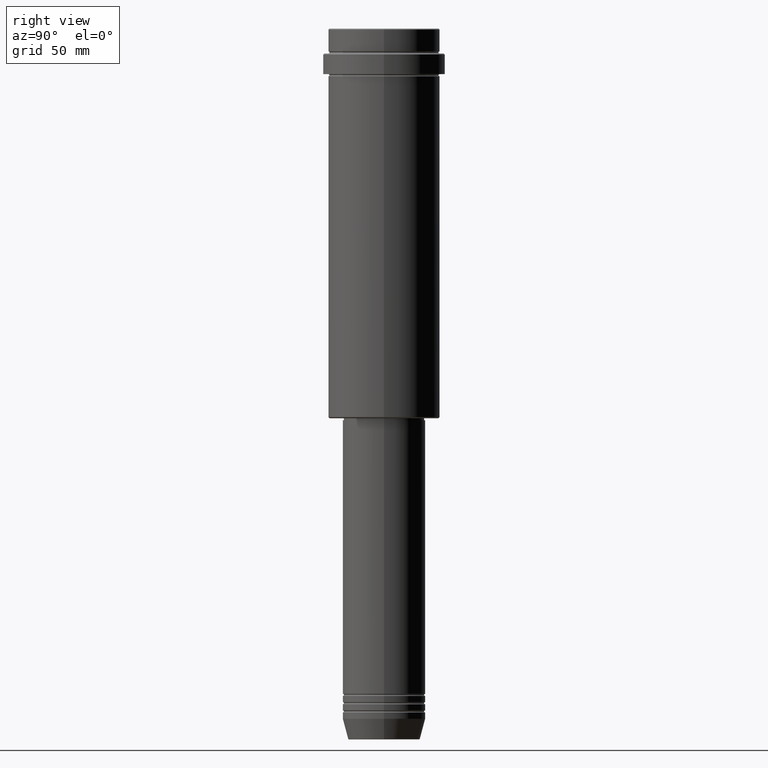
[diagram: clean part render]
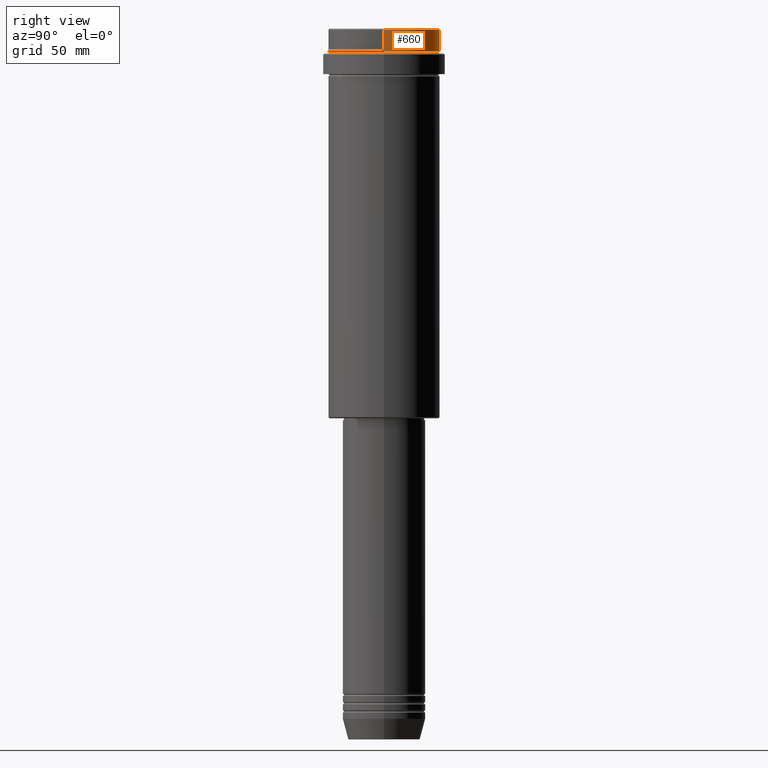
[diagram: same view with one face highlighted and labeled with its STEP entity id]
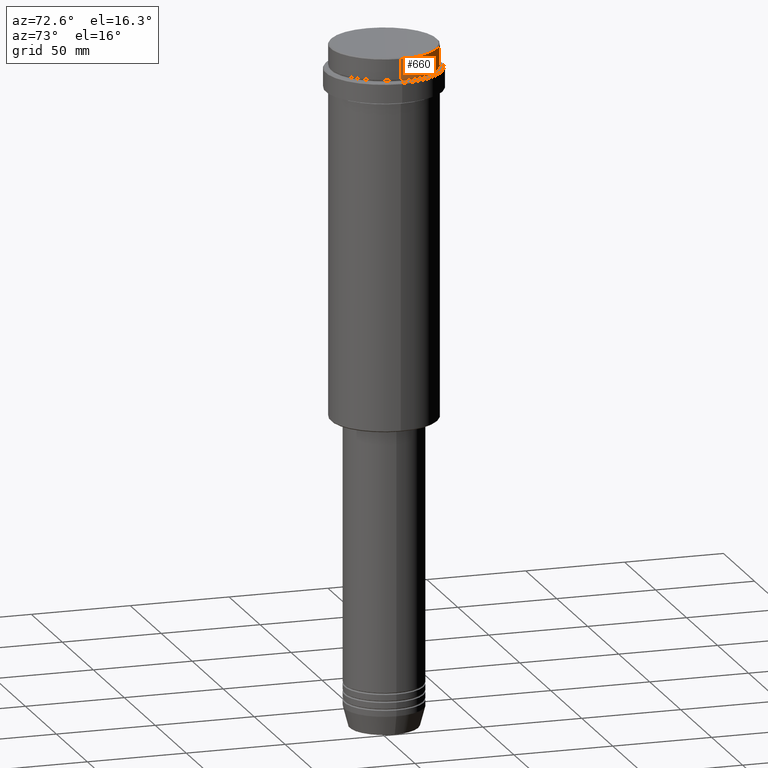
[diagram: same view with one face highlighted and labeled with its STEP entity id]
A machine part, right view. The second image highlights one B-rep face of the part: STEP entity #660.
A second angle (auxiliary view) of the same face is appended — the face is thin or edge-on in the first view.
In plain terms, the highlighted cylindrical surface (partial cylindrical patch) has radius 27 mm, axis along (-0, -0, 1).
Its self-contained STEP definition (entity closure, byte-faithful):
#37 = CIRCLE ( 'NONE', #472, 27.00000000000000355 ) ;
#51 = VECTOR ( 'NONE', #1238, 1000.000000000000000 ) ;
#68 = EDGE_CURVE ( 'NONE', #1040, #731, #37, .T. ) ;
#71 = LINE ( 'NONE', #401, #51 ) ;
#99 = CIRCLE ( 'NONE', #120, 27.00000000000000355 ) ;
#120 = AXIS2_PLACEMENT_3D ( 'NONE', #612, #718, #711 ) ;
#140 = CARTESIAN_POINT ( 'NONE',  ( -27.00000000000000355, 3.306546357697854128E-15, -0.4999999999999241163 ) ) ;
#164 = ORIENTED_EDGE ( 'NONE', *, *, #68, .T. ) ;
#190 = DIRECTION ( 'NONE',  ( -0.000000000000000000, -0.000000000000000000, 1.000000000000000000 ) ) ;
#214 = VERTEX_POINT ( 'NONE', #1381 ) ;
#293 = ORIENTED_EDGE ( 'NONE', *, *, #1083, .T. ) ;
#387 = AXIS2_PLACEMENT_3D ( 'NONE', #396, #190, #1156 ) ;
#396 = CARTESIAN_POINT ( 'NONE',  ( 0.000000000000000000, 0.000000000000000000, 0.000000000000000000 ) ) ;
#401 = CARTESIAN_POINT ( 'NONE',  ( 27.00000000000000355, 0.000000000000000000, 0.000000000000000000 ) ) ;
#472 = AXIS2_PLACEMENT_3D ( 'NONE', #1301, #758, #793 ) ;
#546 = DIRECTION ( 'NONE',  ( -0.000000000000000000, -0.000000000000000000, 1.000000000000000000 ) ) ;
#612 = CARTESIAN_POINT ( 'NONE',  ( 0.000000000000000000, 0.000000000000000000, -11.00000000000000178 ) ) ;
#622 = CARTESIAN_POINT ( 'NONE',  ( 27.00000000000000355, 0.000000000000000000, -0.4999999999999241163 ) ) ;
#660 = ADVANCED_FACE ( 'NONE', ( #1136 ), #1255, .T. ) ;
#711 = DIRECTION ( 'NONE',  ( 1.000000000000000000, 0.000000000000000000, 0.000000000000000000 ) ) ;
#718 = DIRECTION ( 'NONE',  ( -0.000000000000000000, -0.000000000000000000, 1.000000000000000000 ) ) ;
#728 = ORIENTED_EDGE ( 'NONE', *, *, #1061, .T. ) ;
#731 = VERTEX_POINT ( 'NONE', #622 ) ;
#758 = DIRECTION ( 'NONE',  ( 0.000000000000000000, 0.000000000000000000, -1.000000000000000000 ) ) ;
#793 = DIRECTION ( 'NONE',  ( 1.000000000000000000, 0.000000000000000000, 0.000000000000000000 ) ) ;
#794 = LINE ( 'NONE', #1233, #990 ) ;
#960 = ORIENTED_EDGE ( 'NONE', *, *, #1131, .F. ) ;
#990 = VECTOR ( 'NONE', #546, 1000.000000000000000 ) ;
#1040 = VERTEX_POINT ( 'NONE', #140 ) ;
#1061 = EDGE_CURVE ( 'NONE', #1404, #1040, #794, .T. ) ;
#1083 = EDGE_CURVE ( 'NONE', #214, #1404, #99, .T. ) ;
#1107 = CARTESIAN_POINT ( 'NONE',  ( -27.00000000000000355, 3.306546357697854128E-15, -11.00000000000000178 ) ) ;
#1131 = EDGE_CURVE ( 'NONE', #214, #731, #71, .T. ) ;
#1136 = FACE_OUTER_BOUND ( 'NONE', #1198, .T. ) ;
#1156 = DIRECTION ( 'NONE',  ( 1.000000000000000000, 0.000000000000000000, 0.000000000000000000 ) ) ;
#1198 = EDGE_LOOP ( 'NONE', ( #293, #728, #164, #960 ) ) ;
#1233 = CARTESIAN_POINT ( 'NONE',  ( -27.00000000000000355, 3.306546357697854128E-15, 0.000000000000000000 ) ) ;
#1238 = DIRECTION ( 'NONE',  ( -0.000000000000000000, -0.000000000000000000, 1.000000000000000000 ) ) ;
#1255 = CYLINDRICAL_SURFACE ( 'NONE', #387, 27.00000000000000355 ) ;
#1301 = CARTESIAN_POINT ( 'NONE',  ( 0.000000000000000000, 0.000000000000000000, -0.4999999999999241163 ) ) ;
#1381 = CARTESIAN_POINT ( 'NONE',  ( 27.00000000000000355, 0.000000000000000000, -11.00000000000000178 ) ) ;
#1404 = VERTEX_POINT ( 'NONE', #1107 ) ;